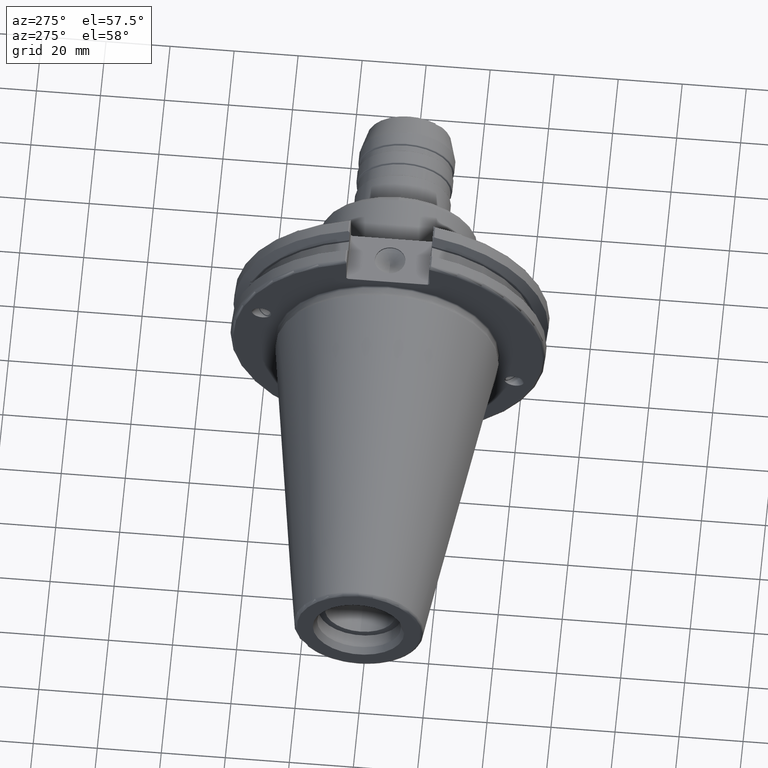
[diagram: clean part render]
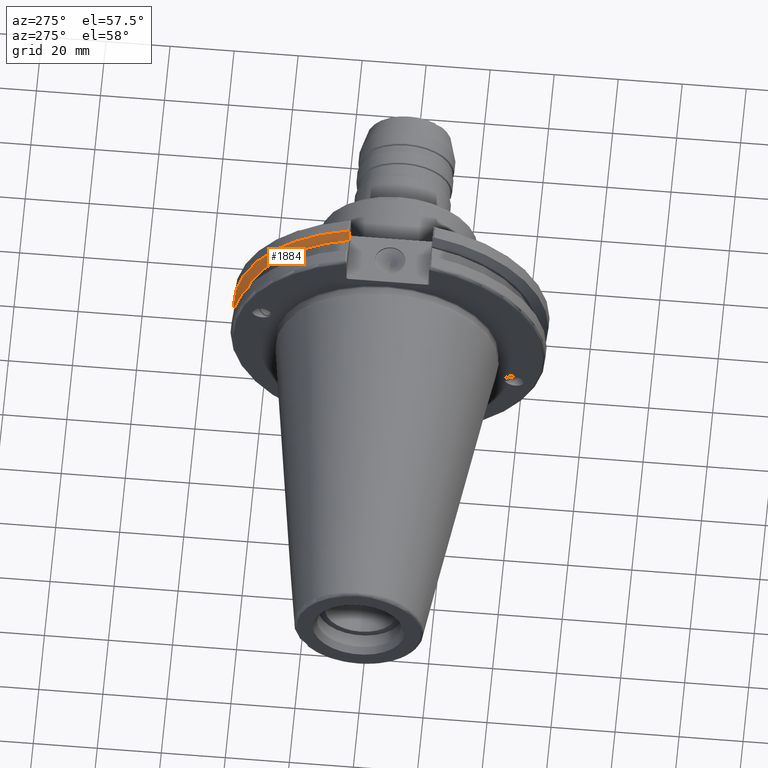
[diagram: same view with one face highlighted and labeled with its STEP entity id]
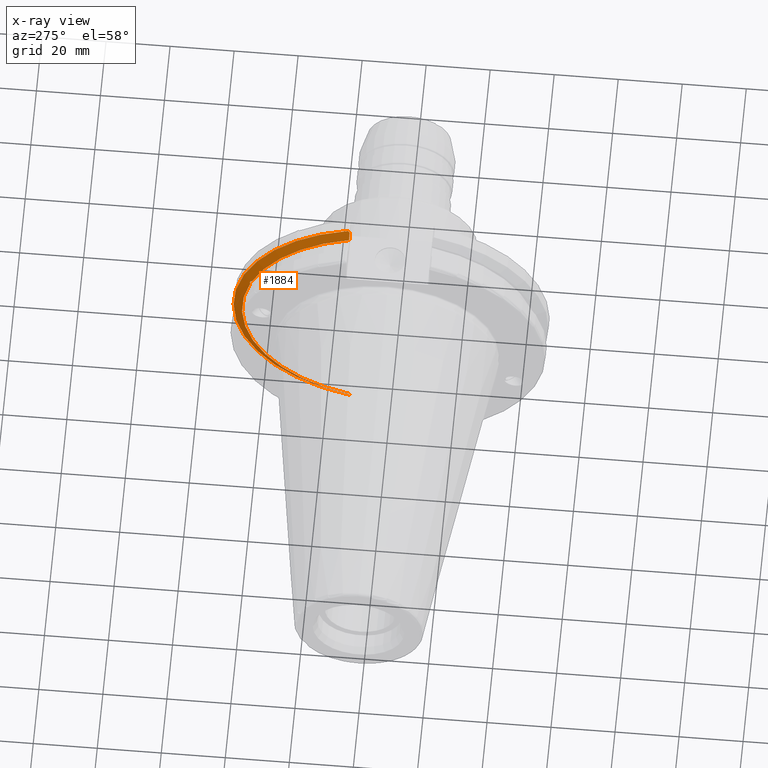
[diagram: x-ray of the same camera — body ghosted, the highlighted face saturated]
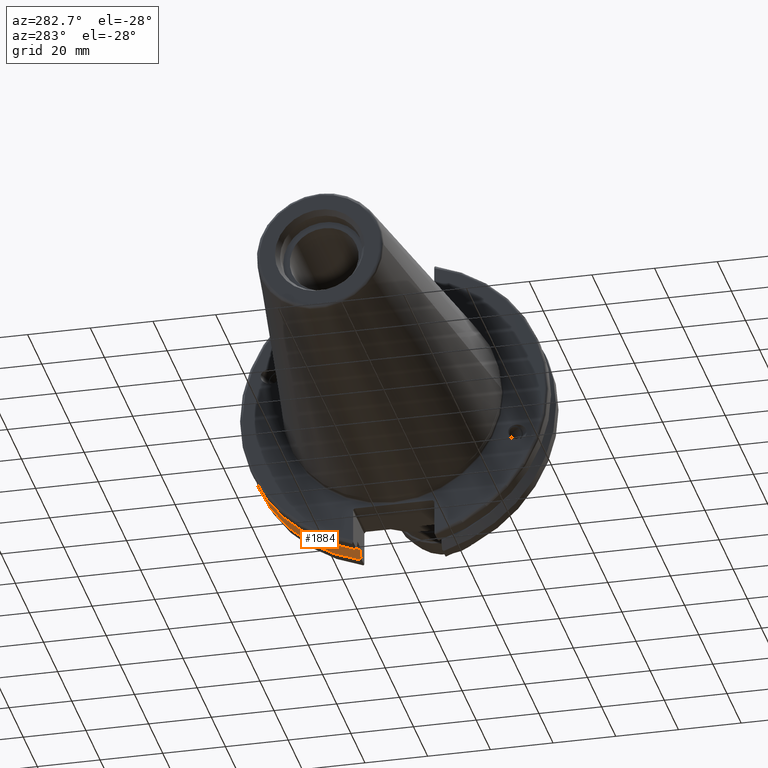
[diagram: same view with one face highlighted and labeled with its STEP entity id]
A machine part, auxiliary view. The second image highlights one B-rep face of the part: STEP entity #1884.
The next image is the same camera in x-ray: the body ghosted, the highlighted face saturated — about 5% of this face is hidden behind the body in this view.
A second angle (auxiliary view) of the same face is appended — the face is thin or edge-on in the first view.
In plain terms, the highlighted conical surface has half-angle 60 deg.
Its self-contained STEP definition (entity closure, byte-faithful):
#19=(
BOUNDED_CURVE()
B_SPLINE_CURVE(2,(#3481,#3482,#3483),.UNSPECIFIED.,.F.,.F.)
B_SPLINE_CURVE_WITH_KNOTS((3,3),(0.,0.27582391067312),.UNSPECIFIED.)
CURVE()
GEOMETRIC_REPRESENTATION_ITEM()
RATIONAL_B_SPLINE_CURVE((1.,1.00038235574463,1.0001287363678))
REPRESENTATION_ITEM('')
);
#20=(
BOUNDED_CURVE()
B_SPLINE_CURVE(2,(#3485,#3486,#3487),.UNSPECIFIED.,.F.,.F.)
B_SPLINE_CURVE_WITH_KNOTS((3,3),(0.,0.0648240472897789),.UNSPECIFIED.)
CURVE()
GEOMETRIC_REPRESENTATION_ITEM()
RATIONAL_B_SPLINE_CURVE((1.,1.00011477674848,1.00019140645968))
REPRESENTATION_ITEM('')
);
#21=(
BOUNDED_CURVE()
B_SPLINE_CURVE(2,(#3491,#3492,#3493),.UNSPECIFIED.,.F.,.F.)
B_SPLINE_CURVE_WITH_KNOTS((3,3),(0.325260944932466,0.390084992222202),
 .UNSPECIFIED.)
CURVE()
GEOMETRIC_REPRESENTATION_ITEM()
RATIONAL_B_SPLINE_CURVE((1.00019140645958,1.00011477674842,1.))
REPRESENTATION_ITEM('')
);
#22=(
BOUNDED_CURVE()
B_SPLINE_CURVE(2,(#3495,#3496,#3497),.UNSPECIFIED.,.F.,.F.)
B_SPLINE_CURVE_WITH_KNOTS((3,3),(0.0558332664531693,0.331657177124505),
 .UNSPECIFIED.)
CURVE()
GEOMETRIC_REPRESENTATION_ITEM()
RATIONAL_B_SPLINE_CURVE((1.00012873636717,1.00038235574273,1.))
REPRESENTATION_ITEM('')
);
#126=B_SPLINE_CURVE_WITH_KNOTS('',3,(#3406,#3407,#3408,#3409,#3410,#3411,
#3412,#3413),.UNSPECIFIED.,.F.,.F.,(4,2,2,4),(0.426712868358719,0.441644498666905,
0.480313313223129,0.518982127779353),.UNSPECIFIED.);
#130=B_SPLINE_CURVE_WITH_KNOTS('',3,(#3468,#3469,#3470,#3471,#3472,#3473,
#3474,#3475),.UNSPECIFIED.,.F.,.F.,(4,2,2,4),(0.518982127779353,0.557650942335577,
0.5963197568918,0.611251387199989),.UNSPECIFIED.);
#157=CONICAL_SURFACE('',#2105,47.8172386482472,1.0471975511966);
#218=FACE_OUTER_BOUND('',#337,.T.);
#337=EDGE_LOOP('',(#1510,#1511,#1512,#1513,#1514,#1515,#1516,#1517,#1518));
#699=CIRCLE('',#2106,46.4219772964944);
#700=CIRCLE('',#2107,49.2125);
#701=CIRCLE('',#2108,46.4219772964944);
#851=VERTEX_POINT('',#3403);
#852=VERTEX_POINT('',#3405);
#859=VERTEX_POINT('',#3466);
#860=VERTEX_POINT('',#3478);
#861=VERTEX_POINT('',#3480);
#862=VERTEX_POINT('',#3484);
#863=VERTEX_POINT('',#3488);
#864=VERTEX_POINT('',#3490);
#865=VERTEX_POINT('',#3494);
#1088=EDGE_CURVE('',#852,#851,#126,.T.);
#1096=EDGE_CURVE('',#851,#859,#130,.T.);
#1097=EDGE_CURVE('',#859,#860,#699,.T.);
#1098=EDGE_CURVE('',#860,#861,#19,.T.);
#1099=EDGE_CURVE('',#862,#861,#20,.T.);
#1100=EDGE_CURVE('',#863,#862,#700,.T.);
#1101=EDGE_CURVE('',#864,#863,#21,.T.);
#1102=EDGE_CURVE('',#864,#865,#22,.T.);
#1103=EDGE_CURVE('',#865,#852,#701,.T.);
#1510=ORIENTED_EDGE('',*,*,#1088,.T.);
#1511=ORIENTED_EDGE('',*,*,#1096,.T.);
#1512=ORIENTED_EDGE('',*,*,#1097,.T.);
#1513=ORIENTED_EDGE('',*,*,#1098,.T.);
#1514=ORIENTED_EDGE('',*,*,#1099,.F.);
#1515=ORIENTED_EDGE('',*,*,#1100,.F.);
#1516=ORIENTED_EDGE('',*,*,#1101,.F.);
#1517=ORIENTED_EDGE('',*,*,#1102,.T.);
#1518=ORIENTED_EDGE('',*,*,#1103,.T.);
#1884=ADVANCED_FACE('',(#218),#157,.T.);
#2105=AXIS2_PLACEMENT_3D('',#3477,#2537,#2538);
#2106=AXIS2_PLACEMENT_3D('',#3479,#2539,#2540);
#2107=AXIS2_PLACEMENT_3D('',#3489,#2541,#2542);
#2108=AXIS2_PLACEMENT_3D('',#3498,#2543,#2544);
#2537=DIRECTION('center_axis',(1.,0.,0.));
#2538=DIRECTION('ref_axis',(0.,1.,0.));
#2539=DIRECTION('center_axis',(1.,0.,0.));
#2540=DIRECTION('ref_axis',(0.,0.,-1.));
#2541=DIRECTION('center_axis',(1.,0.,0.));
#2542=DIRECTION('ref_axis',(0.,0.,-1.));
#2543=DIRECTION('center_axis',(1.,0.,0.));
#2544=DIRECTION('ref_axis',(0.,0.,-1.));
#3403=CARTESIAN_POINT('',(13.2341,43.923494649906,15.9868446375166));
#3405=CARTESIAN_POINT('',(13.0491,43.9096390749305,15.0646464421033));
#3406=CARTESIAN_POINT('Ctrl Pts',(13.0491,43.9096390749305,15.0646464421033));
#3407=CARTESIAN_POINT('Ctrl Pts',(13.0660815609661,43.9250360001461,15.1104047527575));
#3408=CARTESIAN_POINT('Ctrl Pts',(13.0821132459668,43.9385582852181,15.1564111356409));
#3409=CARTESIAN_POINT('Ctrl Pts',(13.1358132615496,43.9797830409459,15.3217566390709));
#3410=CARTESIAN_POINT('Ctrl Pts',(13.1719838933644,43.9989016655819,15.4570249042868));
#3411=CARTESIAN_POINT('Ctrl Pts',(13.2212913174802,43.9931221605126,15.7289849146254));
#3412=CARTESIAN_POINT('Ctrl Pts',(13.2341,43.9675796948952,15.8657219718732));
#3413=CARTESIAN_POINT('Ctrl Pts',(13.2341,43.923494649906,15.9868446375166));
#3466=CARTESIAN_POINT('',(13.0491,43.3201030900029,16.684383248648));
#3468=CARTESIAN_POINT('Ctrl Pts',(13.2341,43.923494649906,15.9868446375166));
#3469=CARTESIAN_POINT('Ctrl Pts',(13.2341,43.8794096049169,16.10796730316));
#3470=CARTESIAN_POINT('Ctrl Pts',(13.2212913174802,43.8110833825828,16.2291323464527));
#3471=CARTESIAN_POINT('Ctrl Pts',(13.1719838933644,43.6406982153492,16.441180795372));
#3472=CARTESIAN_POINT('Ctrl Pts',(13.1358132615496,43.5391037343221,16.5325130832406));
#3473=CARTESIAN_POINT('Ctrl Pts',(13.0821132459668,43.4012416983557,16.6326763251437));
#3474=CARTESIAN_POINT('Ctrl Pts',(13.0660815609661,43.3613106941341,16.6592273018006));
#3475=CARTESIAN_POINT('Ctrl Pts',(13.0491,43.3201030900029,16.684383248648));
#3477=CARTESIAN_POINT('Origin',(13.8546545170244,0.,0.));
#3478=CARTESIAN_POINT('',(13.0491,12.95,44.5791147973604));
#3479=CARTESIAN_POINT('Origin',(13.0491,0.,0.));
#3480=CARTESIAN_POINT('',(14.3818103943757,12.95,46.9780755322918));
#3481=CARTESIAN_POINT('Ctrl Pts',(13.0491,12.95,44.5791147973604));
#3482=CARTESIAN_POINT('Ctrl Pts',(13.6979955094656,12.95,45.7494966802583));
#3483=CARTESIAN_POINT('Ctrl Pts',(14.3818103943757,12.95,46.9780755322918));
#3484=CARTESIAN_POINT('',(14.6602090340487,13.4317035994433,47.3440544806494));
#3485=CARTESIAN_POINT('Ctrl Pts',(14.6602090340487,13.4317035994433,47.3440544806494));
#3486=CARTESIAN_POINT('Ctrl Pts',(14.5199310333618,13.1896660169966,47.1601640966264));
#3487=CARTESIAN_POINT('Ctrl Pts',(14.3818103943757,12.95,46.9780755322918));
#3488=CARTESIAN_POINT('',(14.6602090340487,13.4317035994433,-47.3440544806494));
#3489=CARTESIAN_POINT('Origin',(14.6602090340487,0.,0.));
#3490=CARTESIAN_POINT('',(14.3818103943757,12.95,-46.9780755322918));
#3491=CARTESIAN_POINT('Ctrl Pts',(14.3818103943757,12.95,-46.9780755322918));
#3492=CARTESIAN_POINT('Ctrl Pts',(14.5199310333618,13.1896660169966,-47.1601640966264));
#3493=CARTESIAN_POINT('Ctrl Pts',(14.6602090340487,13.4317035994433,-47.3440544806494));
#3494=CARTESIAN_POINT('',(13.0491,12.95,-44.5791147973605));
#3495=CARTESIAN_POINT('Ctrl Pts',(14.3818103943757,12.95,-46.9780755322918));
#3496=CARTESIAN_POINT('Ctrl Pts',(13.6979955094864,12.95,-45.7494966802956));
#3497=CARTESIAN_POINT('Ctrl Pts',(13.0491,12.95,-44.5791147973604));
#3498=CARTESIAN_POINT('Origin',(13.0491,0.,0.));